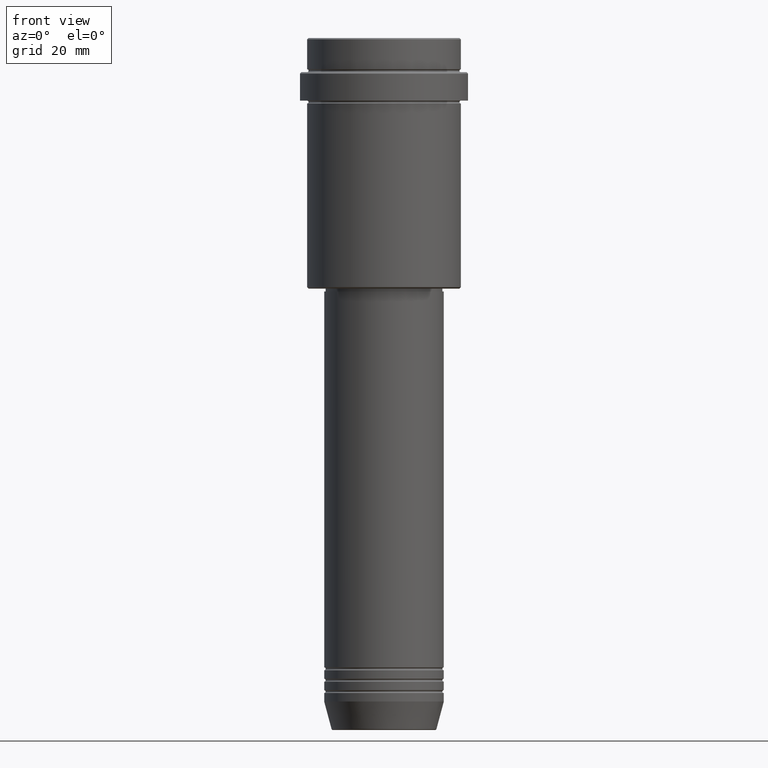
[diagram: clean part render]
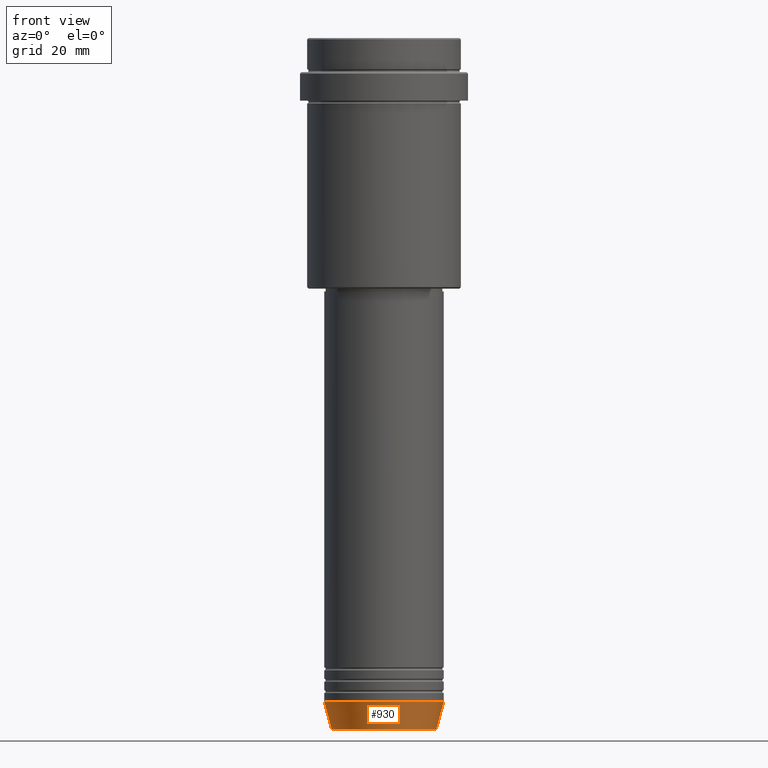
[diagram: same view with one face highlighted and labeled with its STEP entity id]
A machine part, front view. The second image highlights one B-rep face of the part: STEP entity #930.
In plain terms, the highlighted conical surface has half-angle 15 deg.
Its self-contained STEP definition (entity closure, byte-faithful):
#11 = CARTESIAN_POINT ( 'NONE',  ( 0.000000000000000000, 0.000000000000000000, -242.6294095225512706 ) ) ;
#54 = VERTEX_POINT ( 'NONE', #906 ) ;
#123 = CARTESIAN_POINT ( 'NONE',  ( 18.41980749484383040, 0.000000000000000000, -242.6294095225512706 ) ) ;
#158 = ORIENTED_EDGE ( 'NONE', *, *, #1180, .F. ) ;
#221 = DIRECTION ( 'NONE',  ( -0.000000000000000000, -0.000000000000000000, 1.000000000000000000 ) ) ;
#243 = DIRECTION ( 'NONE',  ( 1.000000000000000000, 0.000000000000000000, 0.000000000000000000 ) ) ;
#248 = VECTOR ( 'NONE', #327, 1000.000000000000114 ) ;
#282 = VERTEX_POINT ( 'NONE', #123 ) ;
#317 = CARTESIAN_POINT ( 'NONE',  ( -18.41980749484383040, 2.413767053578267064E-15, -242.6294095225512706 ) ) ;
#327 = DIRECTION ( 'NONE',  ( -0.2588190451025211836, 3.169619151431770488E-17, 0.9659258262890680902 ) ) ;
#342 = CONICAL_SURFACE ( 'NONE', #650, 21.00000000000000000, 0.2617993877991499074 ) ;
#351 = FACE_OUTER_BOUND ( 'NONE', #470, .T. ) ;
#396 = DIRECTION ( 'NONE',  ( -0.000000000000000000, -0.000000000000000000, 1.000000000000000000 ) ) ;
#449 = CARTESIAN_POINT ( 'NONE',  ( -21.00000000000000000, 2.571758278209441661E-15, -232.9999999999999716 ) ) ;
#470 = EDGE_LOOP ( 'NONE', ( #1100, #839, #768, #158 ) ) ;
#495 = CIRCLE ( 'NONE', #1165, 21.00000000000000000 ) ;
#531 = DIRECTION ( 'NONE',  ( 0.2588190451025211836, 0.000000000000000000, 0.9659258262890680902 ) ) ;
#607 = VERTEX_POINT ( 'NONE', #1057 ) ;
#650 = AXIS2_PLACEMENT_3D ( 'NONE', #1347, #1238, #243 ) ;
#682 = EDGE_CURVE ( 'NONE', #282, #54, #766, .T. ) ;
#695 = EDGE_CURVE ( 'NONE', #772, #282, #1050, .T. ) ;
#766 = LINE ( 'NONE', #975, #1293 ) ;
#768 = ORIENTED_EDGE ( 'NONE', *, *, #682, .T. ) ;
#772 = VERTEX_POINT ( 'NONE', #317 ) ;
#839 = ORIENTED_EDGE ( 'NONE', *, *, #695, .T. ) ;
#871 = DIRECTION ( 'NONE',  ( 1.000000000000000000, 0.000000000000000000, 0.000000000000000000 ) ) ;
#906 = CARTESIAN_POINT ( 'NONE',  ( 21.00000000000000000, 0.000000000000000000, -232.9999999999999716 ) ) ;
#930 = ADVANCED_FACE ( 'NONE', ( #351 ), #342, .T. ) ;
#975 = CARTESIAN_POINT ( 'NONE',  ( 21.00000000000000000, 0.000000000000000000, -232.9999999999999716 ) ) ;
#1050 = CIRCLE ( 'NONE', #1098, 18.41980749484383040 ) ;
#1057 = CARTESIAN_POINT ( 'NONE',  ( -21.00000000000000000, 2.571758278209441661E-15, -232.9999999999999716 ) ) ;
#1098 = AXIS2_PLACEMENT_3D ( 'NONE', #11, #221, #1201 ) ;
#1100 = ORIENTED_EDGE ( 'NONE', *, *, #1352, .F. ) ;
#1165 = AXIS2_PLACEMENT_3D ( 'NONE', #1303, #396, #871 ) ;
#1180 = EDGE_CURVE ( 'NONE', #607, #54, #495, .T. ) ;
#1201 = DIRECTION ( 'NONE',  ( 1.000000000000000000, 0.000000000000000000, 0.000000000000000000 ) ) ;
#1238 = DIRECTION ( 'NONE',  ( -0.000000000000000000, -0.000000000000000000, 1.000000000000000000 ) ) ;
#1293 = VECTOR ( 'NONE', #531, 1000.000000000000114 ) ;
#1303 = CARTESIAN_POINT ( 'NONE',  ( 0.000000000000000000, 0.000000000000000000, -232.9999999999999716 ) ) ;
#1330 = LINE ( 'NONE', #449, #248 ) ;
#1347 = CARTESIAN_POINT ( 'NONE',  ( 0.000000000000000000, 0.000000000000000000, -232.9999999999999716 ) ) ;
#1352 = EDGE_CURVE ( 'NONE', #772, #607, #1330, .T. ) ;